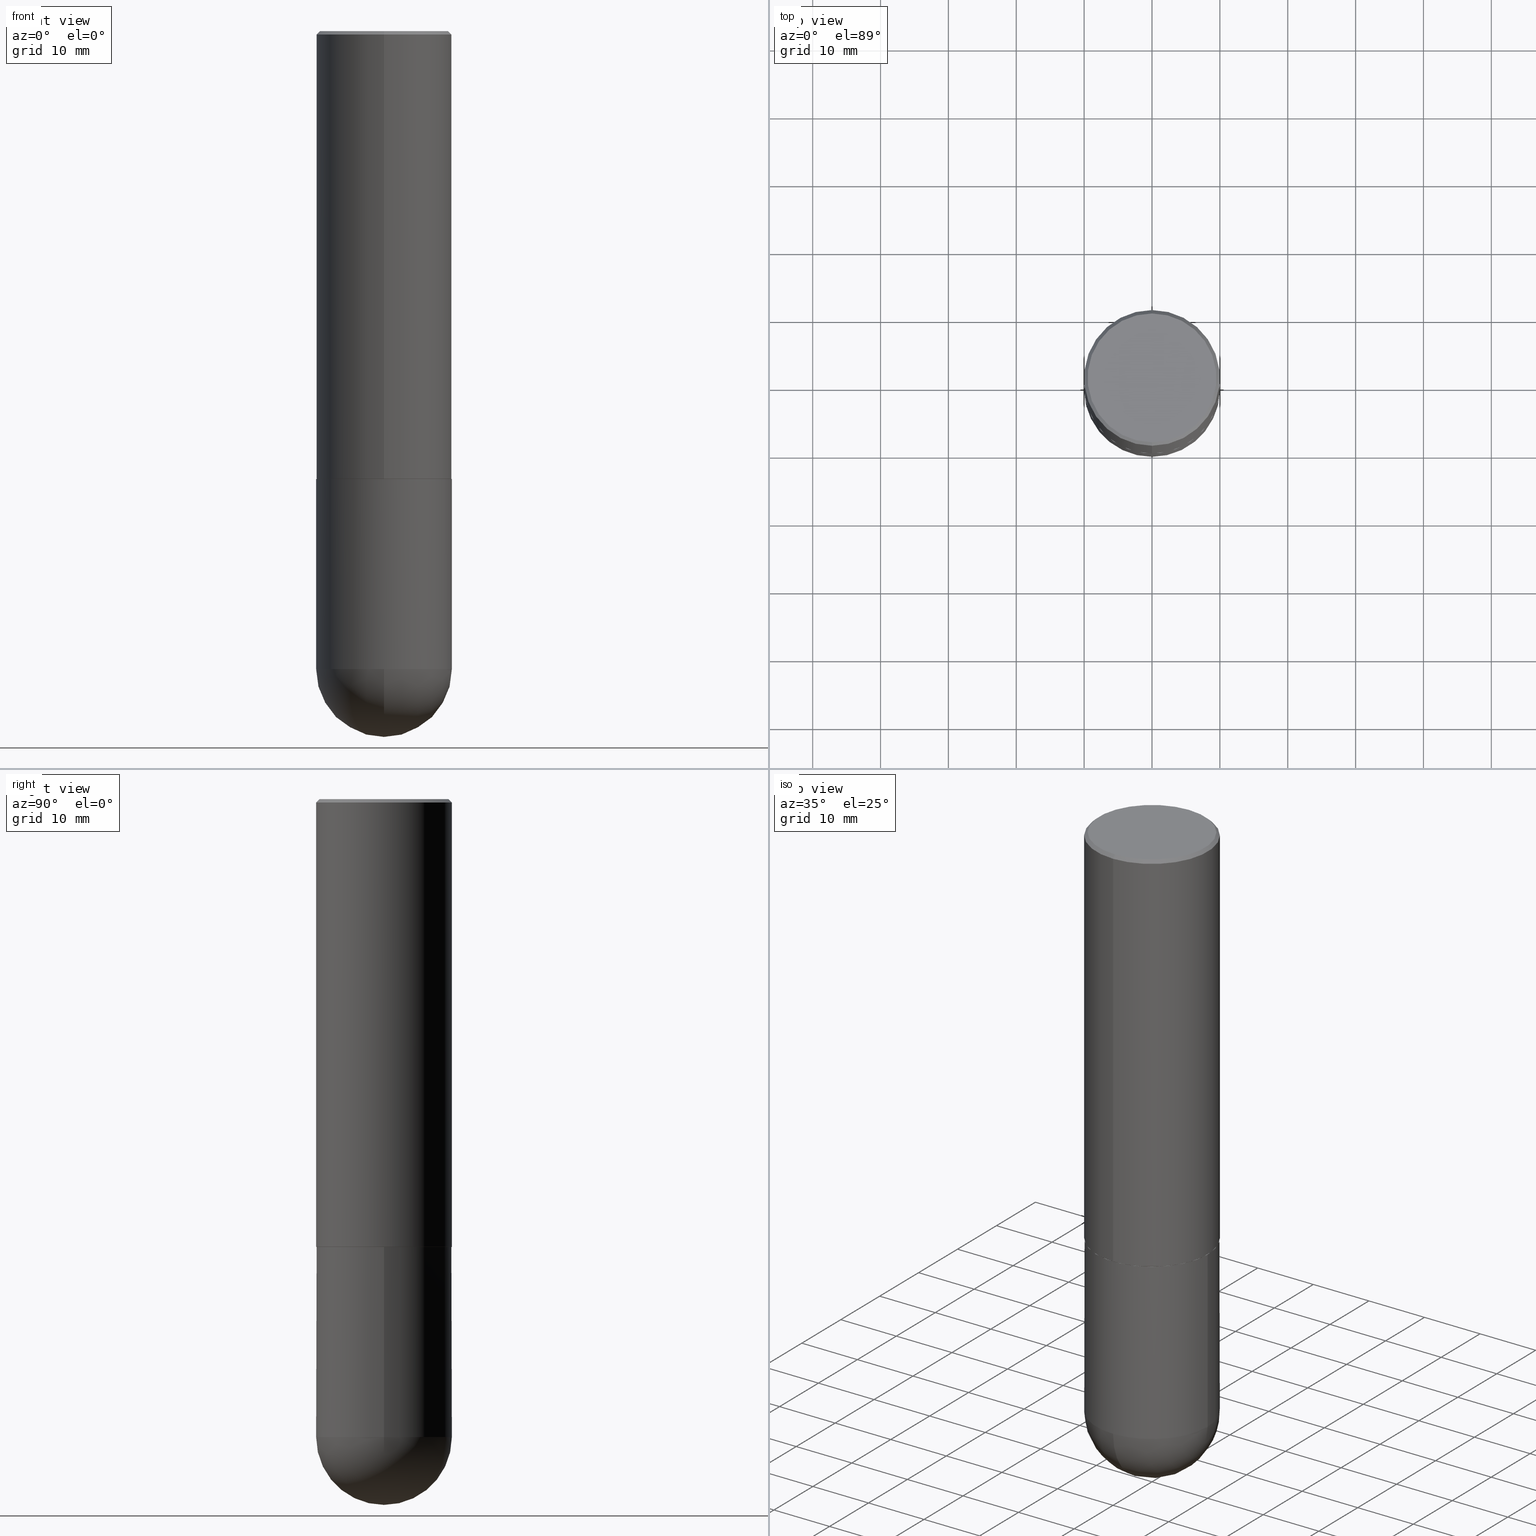
[diagram: canonical four-view strip — front | top / right | iso, engineering-drawing reading convention]
A machine part, canonical four-view strip (front | top / right | iso — engineering-drawing reading convention). The complete STEP part file that produces these views, byte-faithful:
ISO-10303-21;
HEADER;
FILE_DESCRIPTION (( 'STEP AP203' ),
    '1' );
FILE_NAME ('46521.STEP',
    '2024-04-10T11:50:51',
    ( '' ),
    ( '' ),
    'SwSTEP 2.0',
    'SolidWorks 2023',
    '' );
FILE_SCHEMA (( 'CONFIG_CONTROL_DESIGN' ));
ENDSEC;

DATA;
#1 = AXIS2_PLACEMENT_3D ( 'NONE', #306, #272, #25 ) ;
#2 = EDGE_CURVE ( 'NONE', #365, #158, #265, .T. ) ;
#3 = ORIENTED_EDGE ( 'NONE', *, *, #199, .F. ) ;
#4 = APPROVAL_PERSON_ORGANIZATION ( #310, #12, #276 ) ;
#5 = AXIS2_PLACEMENT_3D ( 'NONE', #331, #20, #266 ) ;
#6 = ORIENTED_EDGE ( 'NONE', *, *, #252, .T. ) ;
#7 = ADVANCED_FACE ( 'NONE', ( #233 ), #207, .T. ) ;
#8 = EDGE_LOOP ( 'NONE', ( #316, #46, #324, #204 ) ) ;
#9 = DIRECTION ( 'NONE',  ( -2.445468806185136597E-29, 3.491481338843145583E-15, 1.000000000000000000 ) ) ;
#10 = VERTEX_POINT ( 'NONE', #177 ) ;
#11 = CARTESIAN_POINT ( 'NONE',  ( 9.050190957929953666E-29, -1.292127413879071357E-14, -3.700800000000000090 ) ) ;
#12 = APPROVAL ( #249, 'UNSPECIFIED' ) ;
#13 = ORIENTED_EDGE ( 'NONE', *, *, #67, .F. ) ;
#14 = CARTESIAN_POINT ( 'NONE',  ( 6.354297864097246994E-29, -9.072276970993920294E-15, -2.598400000000000265 ) ) ;
#15 = ORIENTED_EDGE ( 'NONE', *, *, #288, .F. ) ;
#16 = DIRECTION ( 'NONE',  ( -6.982962677686265133E-15, -1.000000000000000000, 3.491137977679279424E-15 ) ) ;
#17 = VECTOR ( 'NONE', #162, 39.37007874015748143 ) ;
#18 = CALENDAR_DATE ( 2024, 10, 4 ) ;
#19 = ORIENTED_EDGE ( 'NONE', *, *, #327, .F. ) ;
#20 = DIRECTION ( 'NONE',  ( 2.445465618879790196E-29, -3.491485903245811789E-15, -1.000000000000000000 ) ) ;
#21 = VERTEX_POINT ( 'NONE', #109 ) ;
#22 = CC_DESIGN_DATE_AND_TIME_ASSIGNMENT ( #53, #341, ( #311 ) ) ;
#23 = DIRECTION ( 'NONE',  ( -2.445468806185136597E-29, 3.491481338843145583E-15, 1.000000000000000000 ) ) ;
#24 = COORDINATED_UNIVERSAL_TIME_OFFSET ( 5, 0, .BEHIND. ) ;
#25 = DIRECTION ( 'NONE',  ( 1.000000000000000000, -6.982962677686266711E-15, 0.000000000000000000 ) ) ;
#26 = DIRECTION ( 'NONE',  ( -2.445465618879790196E-29, 3.491485903245811789E-15, 1.000000000000000000 ) ) ;
#27 = AXIS2_PLACEMENT_3D ( 'NONE', #405, #210, #337 ) ;
#28 = COORDINATED_UNIVERSAL_TIME_OFFSET ( 5, 0, .BEHIND. ) ;
#29 = APPROVAL_DATE_TIME ( #60, #344 ) ;
#30 = AXIS2_PLACEMENT_3D ( 'NONE', #11, #392, #96 ) ;
#31 = AXIS2_PLACEMENT_3D ( 'NONE', #166, #332, #50 ) ;
#32 = EDGE_CURVE ( 'NONE', #193, #365, #47, .T. ) ;
#33 = ORIENTED_EDGE ( 'NONE', *, *, #351, .T. ) ;
#34 = CARTESIAN_POINT ( 'NONE',  ( -0.3937000000000000499, -8.199362874132856734E-15, -2.598400000000000265 ) ) ;
#35 = ORIENTED_EDGE ( 'NONE', *, *, #32, .F. ) ;
#36 = DIRECTION ( 'NONE',  ( 6.982962677686265922E-15, 1.000000000000000000, -4.163344669033671690E-15 ) ) ;
#37 = MECHANICAL_CONTEXT ( 'NONE', #104, 'mechanical' ) ;
#38 = ADVANCED_FACE ( 'NONE', ( #132 ), #82, .T. ) ;
#39 = AXIS2_PLACEMENT_3D ( 'NONE', #268, #359, #43 ) ;
#40 = ORIENTED_EDGE ( 'NONE', *, *, #394, .F. ) ;
#41 = DIRECTION ( 'NONE',  ( -6.982962677686265922E-15, -1.000000000000000000, 3.491485903245811789E-15 ) ) ;
#42 = CARTESIAN_POINT ( 'NONE',  ( 2.749192406205083217E-15, 0.3936999999999999389, -0.02000000000000146452 ) ) ;
#43 = DIRECTION ( 'NONE',  ( -6.982962677686265922E-15, -1.000000000000000000, 4.163344669033672479E-15 ) ) ;
#44 = DIRECTION ( 'NONE',  ( -2.445465618879790196E-29, 3.491485903245811789E-15, 1.000000000000000000 ) ) ;
#45 = ADVANCED_BREP_SHAPE_REPRESENTATION ( '46521', ( #121, #387, #383 ), #347 ) ;
#46 = ORIENTED_EDGE ( 'NONE', *, *, #410, .T. ) ;
#47 = CIRCLE ( 'NONE', #39, 0.3937000000000002720 ) ;
#48 = DIRECTION ( 'NONE',  ( 1.000000000000000000, -6.982962677686267499E-15, 0.000000000000000000 ) ) ;
#49 = AXIS2_PLACEMENT_3D ( 'NONE', #107, #180, #41 ) ;
#50 = DIRECTION ( 'NONE',  ( -6.982962677686265922E-15, -1.000000000000000000, 3.491485903245811789E-15 ) ) ;
#51 = ORIENTED_EDGE ( 'NONE', *, *, #252, .F. ) ;
#52 = DIRECTION ( 'NONE',  ( -2.445465618879790196E-29, 3.491485903245811789E-15, 1.000000000000000000 ) ) ;
#53 = DATE_AND_TIME ( #181, #182 ) ;
#54 = CARTESIAN_POINT ( 'NONE',  ( 2.749192406205173147E-15, 0.3936999999999871158, -3.700800000000001866 ) ) ;
#55 = LINE ( 'NONE', #328, #183 ) ;
#56 = DATE_AND_TIME ( #153, #100 ) ;
#57 = EDGE_CURVE ( 'NONE', #194, #388, #295, .T. ) ;
#58 = CLOSED_SHELL ( 'NONE', ( #346, #190, #314, #297, #7 ) ) ;
#59 = CIRCLE ( 'NONE', #119, 0.3926999999999999935 ) ;
#60 = DATE_AND_TIME ( #248, #407 ) ;
#61 = CALENDAR_DATE ( 2024, 10, 4 ) ;
#62 = CARTESIAN_POINT ( 'NONE',  ( 6.351852398478368558E-29, -9.068785485090674446E-15, -2.597400000000000375 ) ) ;
#63 = PERSON_AND_ORGANIZATION_ROLE ( 'classification_officer' ) ;
#64 = VECTOR ( 'NONE', #164, 39.37007874015748143 ) ;
#65 = DIRECTION ( 'NONE',  ( 1.000000000000000000, -6.982962677686266711E-15, 4.876176775795935793E-29 ) ) ;
#66 = ORIENTED_EDGE ( 'NONE', *, *, #124, .F. ) ;
#67 = EDGE_CURVE ( 'NONE', #300, #79, #390, .T. ) ;
#68 = VERTEX_POINT ( 'NONE', #150 ) ;
#69 = CC_DESIGN_PERSON_AND_ORGANIZATION_ASSIGNMENT ( #215, #63, ( #172 ) ) ;
#70 = DIRECTION ( 'NONE',  ( 0.000000000000000000, 0.000000000000000000, 1.000000000000000000 ) ) ;
#71 = CARTESIAN_POINT ( 'NONE',  ( 9.050190957929953666E-29, -1.292127413879071357E-14, -3.700800000000000090 ) ) ;
#72 = ORIENTED_EDGE ( 'NONE', *, *, #57, .F. ) ;
#73 = ORIENTED_EDGE ( 'NONE', *, *, #257, .F. ) ;
#74 = DIRECTION ( 'NONE',  ( -7.105427357600999492E-15, -1.000000000000000000, 0.000000000000000000 ) ) ;
#75 = ORIENTED_EDGE ( 'NONE', *, *, #336, .T. ) ;
#76 = EDGE_CURVE ( 'NONE', #79, #10, #254, .T. ) ;
#77 = PLANE ( 'NONE',  #315 ) ;
#78 = DIRECTION ( 'NONE',  ( 1.000000000000000000, -6.982962677686266711E-15, 0.000000000000000000 ) ) ;
#79 = VERTEX_POINT ( 'NONE', #54 ) ;
#80 = CARTESIAN_POINT ( 'NONE',  ( 2.797406750687515181E-15, 0.3937000000000001609, -1.374598000107876588E-15 ) ) ;
#81 = AXIS2_PLACEMENT_3D ( 'NONE', #171, #296, #141 ) ;
#82 = CYLINDRICAL_SURFACE ( 'NONE', #27, 0.3937000000000001609 ) ;
#83 = DIRECTION ( 'NONE',  ( -6.982962677686265133E-15, -1.000000000000000000, 4.173946514383900962E-15 ) ) ;
#84 = CC_DESIGN_DATE_AND_TIME_ASSIGNMENT ( #56, #89, ( #172 ) ) ;
#85 = DIRECTION ( 'NONE',  ( -2.445468806185136877E-29, 3.491481338843145188E-15, 1.000000000000000000 ) ) ;
#86 = AXIS2_PLACEMENT_3D ( 'NONE', #262, #402, #334 ) ;
#87 = AXIS2_PLACEMENT_3D ( 'NONE', #403, #274, #16 ) ;
#88 = DIRECTION ( 'NONE',  ( -1.000000000000000000, 6.982962677686265922E-15, -4.876176775795935793E-29 ) ) ;
#89 = DATE_TIME_ROLE ( 'classification_date' ) ;
#90 = DIRECTION ( 'NONE',  ( -6.982962677686265922E-15, -1.000000000000000000, 3.491485903245811789E-15 ) ) ;
#91 = ADVANCED_FACE ( 'NONE', ( #179 ), #211, .T. ) ;
#92 = AXIS2_PLACEMENT_3D ( 'NONE', #308, #23, #48 ) ;
#93 = ORIENTED_EDGE ( 'NONE', *, *, #275, .F. ) ;
#94 = ORGANIZATION ( 'UNSPECIFIED', 'UNSPECIFIED', '' ) ;
#95 = ORIENTED_EDGE ( 'NONE', *, *, #378, .F. ) ;
#96 = DIRECTION ( 'NONE',  ( 1.000000000000000000, -6.982962677686266711E-15, 0.000000000000000000 ) ) ;
#97 = APPROVAL_ROLE ( '' ) ;
#98 = DIRECTION ( 'NONE',  ( 6.982962677686265133E-15, 1.000000000000000000, 0.000000000000000000 ) ) ;
#99 = DIRECTION ( 'NONE',  ( 1.000000000000000000, 0.000000000000000000, 0.000000000000000000 ) ) ;
#100 = LOCAL_TIME ( 7, 50, 51.00000000000000000, #154 ) ;
#101 = ORIENTED_EDGE ( 'NONE', *, *, #410, .F. ) ;
#102 = AXIS2_PLACEMENT_3D ( 'NONE', #71, #235, #78 ) ;
#103 = DIRECTION ( 'NONE',  ( -2.445465618879790196E-29, 3.491485903245811789E-15, 1.000000000000000000 ) ) ;
#104 = APPLICATION_CONTEXT ( 'configuration controlled 3d designs of mechanical parts and assemblies' ) ;
#105 = CARTESIAN_POINT ( 'NONE',  ( 0.3937000000000001054, -2.749192406205084005E-15, 1.919750796630860452E-29 ) ) ;
#106 = EDGE_CURVE ( 'NONE', #326, #388, #159, .T. ) ;
#107 = CARTESIAN_POINT ( 'NONE',  ( 0.000000000000000000, 0.000000000000000000, 0.000000000000000000 ) ) ;
#108 = LINE ( 'NONE', #361, #261 ) ;
#109 = CARTESIAN_POINT ( 'NONE',  ( -2.632373081744936315E-15, -0.3737000000000000322, 1.291964450289935158E-15 ) ) ;
#110 = CARTESIAN_POINT ( 'NONE',  ( -2.700978061722651252E-15, -0.3937000000000001054, -0.01999999999999871672 ) ) ;
#111 = FACE_OUTER_BOUND ( 'NONE', #191, .T. ) ;
#112 = ORIENTED_EDGE ( 'NONE', *, *, #336, .F. ) ;
#113 = VECTOR ( 'NONE', #142, 39.37007874015748143 ) ;
#114 = CIRCLE ( 'NONE', #312, 0.3937000000000002720 ) ;
#115 = DIRECTION ( 'NONE',  ( 6.982962677686265922E-15, 1.000000000000000000, -3.491485903245811789E-15 ) ) ;
#116 = ADVANCED_FACE ( 'NONE', ( #237 ), #151, .T. ) ;
#117 = SPHERICAL_SURFACE ( 'NONE', #299, 0.3937000000000003830 ) ;
#118 = VECTOR ( 'NONE', #203, 39.37007874015748143 ) ;
#119 = AXIS2_PLACEMENT_3D ( 'NONE', #366, #144, #269 ) ;
#120 = UNCERTAINTY_MEASURE_WITH_UNIT (LENGTH_MEASURE( 1.000000000000000082E-05 ), #358, 'distance_accuracy_value', 'NONE');
#121 = MANIFOLD_SOLID_BREP ( 'Body-Move/Copy2[1]', #58 ) ;
#122 = ADVANCED_FACE ( 'NONE', ( #263 ), #243, .T. ) ;
#123 = PERSON_AND_ORGANIZATION_ROLE ( 'creator' ) ;
#124 = EDGE_CURVE ( 'NONE', #388, #326, #398, .T. ) ;
#125 = CIRCLE ( 'NONE', #87, 0.3937000000000000499 ) ;
#126 = ORIENTED_EDGE ( 'NONE', *, *, #124, .T. ) ;
#127 = ORIENTED_EDGE ( 'NONE', *, *, #137, .T. ) ;
#128 = CC_DESIGN_APPROVAL ( #12, ( #172 ) ) ;
#129 = AXIS2_PLACEMENT_3D ( 'NONE', #289, #9, #131 ) ;
#130 = APPROVAL_PERSON_ORGANIZATION ( #134, #240, #97 ) ;
#131 = DIRECTION ( 'NONE',  ( 1.000000000000000000, -6.982962677686266711E-15, 0.000000000000000000 ) ) ;
#132 = FACE_OUTER_BOUND ( 'NONE', #224, .T. ) ;
#133 = DIRECTION ( 'NONE',  ( -2.445468806185136597E-29, 3.491481338843145583E-15, 1.000000000000000000 ) ) ;
#134 = PERSON_AND_ORGANIZATION ( #286, #94 ) ;
#135 = VERTEX_POINT ( 'NONE', #304 ) ;
#136 = CARTESIAN_POINT ( 'NONE',  ( 2.609533152651357803E-15, 0.3737000000000000322, -1.311170197919472574E-15 ) ) ;
#137 = EDGE_CURVE ( 'NONE', #135, #158, #125, .T. ) ;
#138 = CARTESIAN_POINT ( 'NONE',  ( 2.790301323329976493E-15, 0.3926999999999909452, -2.598400000000002041 ) ) ;
#139 = DIRECTION ( 'NONE',  ( -2.445465618879790476E-29, 3.491485903245811789E-15, 1.000000000000000000 ) ) ;
#140 = AXIS2_PLACEMENT_3D ( 'NONE', #294, #397, #74 ) ;
#141 = DIRECTION ( 'NONE',  ( -6.982962677686265133E-15, -1.000000000000000000, 3.491137977679279424E-15 ) ) ;
#142 = DIRECTION ( 'NONE',  ( 5.024295867789263036E-15, 0.7071067811867189912, 0.7071067811863760433 ) ) ;
#143 = ORIENTED_EDGE ( 'NONE', *, *, #2, .T. ) ;
#144 = DIRECTION ( 'NONE',  ( -2.445465618879790196E-29, 3.491485903245811789E-15, 1.000000000000000000 ) ) ;
#145 = PRODUCT_DEFINITION_SHAPE ( 'NONE', 'NONE',  #311 ) ;
#146 = CARTESIAN_POINT ( 'NONE',  ( -2.749192406205084005E-15, -0.3937000000000001609, 1.374598000107876588E-15 ) ) ;
#147 = CC_DESIGN_PERSON_AND_ORGANIZATION_ASSIGNMENT ( #376, #123, ( #370 ) ) ;
#148 = DIRECTION ( 'NONE',  ( -2.445468806185136597E-29, 3.491481338843145583E-15, 1.000000000000000000 ) ) ;
#149 = APPROVAL_ROLE ( '' ) ;
#150 = CARTESIAN_POINT ( 'NONE',  ( 2.679362779428220707E-15, 0.3737000000000000322, -1.317572113795984915E-15 ) ) ;
#151 = CONICAL_SURFACE ( 'NONE', #309, 0.3926999999999999935, 0.7853981633976873100 ) ;
#152 = CARTESIAN_POINT ( 'NONE',  ( 6.354306145991459756E-29, -9.072265110850031044E-15, -2.598400000000000265 ) ) ;
#153 = CALENDAR_DATE ( 2024, 10, 4 ) ;
#154 = COORDINATED_UNIVERSAL_TIME_OFFSET ( 5, 0, .BEHIND. ) ;
#155 = CC_DESIGN_PERSON_AND_ORGANIZATION_ASSIGNMENT ( #212, #184, ( #370 ) ) ;
#156 = CIRCLE ( 'NONE', #31, 0.3737000000000000322 ) ;
#157 = CC_DESIGN_PERSON_AND_ORGANIZATION_ASSIGNMENT ( #214, #340, ( #311 ) ) ;
#158 = VERTEX_POINT ( 'NONE', #110 ) ;
#159 = CIRCLE ( 'NONE', #92, 0.3937000000000000499 ) ;
#160 = EDGE_CURVE ( 'NONE', #330, #303, #369, .T. ) ;
#161 = APPROVAL_PERSON_ORGANIZATION ( #271, #344, #149 ) ;
#162 = DIRECTION ( 'NONE',  ( -4.937700262165728178E-15, -0.7071067811867141062, 0.7071067811863809283 ) ) ;
#163 = AXIS2_PLACEMENT_3D ( 'NONE', #291, #393, #98 ) ;
#164 = DIRECTION ( 'NONE',  ( -2.445468806185136877E-29, 3.491481338843145188E-15, 1.000000000000000000 ) ) ;
#165 = CARTESIAN_POINT ( 'NONE',  ( 8.719071180016067419E-29, -1.339545650693076387E-14, -3.700800000000000090 ) ) ;
#166 = CARTESIAN_POINT ( 'NONE',  ( 3.131133034194372146E-46, -4.470439807321751239E-32, -1.280383175302489090E-17 ) ) ;
#167 = ORIENTED_EDGE ( 'NONE', *, *, #106, .F. ) ;
#168 = ADVANCED_FACE ( 'NONE', ( #363 ), #77, .F. ) ;
#169 = CARTESIAN_POINT ( 'NONE',  ( 0.3937000000000001054, -1.374596203102546026E-14, -3.700800000000000090 ) ) ;
#170 = ORIENTED_EDGE ( 'NONE', *, *, #199, .T. ) ;
#171 = CARTESIAN_POINT ( 'NONE',  ( 4.890931237759601867E-31, -6.982971806491655133E-17, -0.02000000000000009062 ) ) ;
#172 = SECURITY_CLASSIFICATION ( '', '', #373 ) ;
#173 = APPLICATION_PROTOCOL_DEFINITION ( 'international standard', 'config_control_design', 1994, #104 ) ;
#174 = EDGE_LOOP ( 'NONE', ( #250, #15, #259, #127 ) ) ;
#175 = DIRECTION ( 'NONE',  ( 1.000000000000000000, -6.982962677686267499E-15, 0.000000000000000000 ) ) ;
#176 = PLANE ( 'NONE',  #189 ) ;
#177 = CARTESIAN_POINT ( 'NONE',  ( -0.3937000000000001054, -8.199362874132859889E-15, -3.700800000000000090 ) ) ;
#178 = LINE ( 'NONE', #325, #17 ) ;
#179 = FACE_OUTER_BOUND ( 'NONE', #371, .T. ) ;
#180 = DIRECTION ( 'NONE',  ( -2.445465618879790196E-29, 3.491485903245811789E-15, 1.000000000000000000 ) ) ;
#181 = CALENDAR_DATE ( 2024, 10, 4 ) ;
#182 = LOCAL_TIME ( 7, 50, 51.00000000000000000, #24 ) ;
#183 = VECTOR ( 'NONE', #85, 39.37007874015748143 ) ;
#184 = PERSON_AND_ORGANIZATION_ROLE ( 'design_supplier' ) ;
#185 = CARTESIAN_POINT ( 'NONE',  ( 2.749192406205146325E-15, 0.3936999999999909461, -2.598400000000002041 ) ) ;
#186 = APPROVAL_DATE_TIME ( #380, #12 ) ;
#187 = PLANE ( 'NONE',  #313 ) ;
#188 = VECTOR ( 'NONE', #213, 39.37007874015748143 ) ;
#189 = AXIS2_PLACEMENT_3D ( 'NONE', #238, #206, #354 ) ;
#190 = ADVANCED_FACE ( 'NONE', ( #241 ), #117, .T. ) ;
#191 = EDGE_LOOP ( 'NONE', ( #219, #3 ) ) ;
#192 = AXIS2_PLACEMENT_3D ( 'NONE', #209, #52, #90 ) ;
#193 = VERTEX_POINT ( 'NONE', #260 ) ;
#194 = VERTEX_POINT ( 'NONE', #169 ) ;
#195 = EDGE_LOOP ( 'NONE', ( #51, #225, #236, #19 ) ) ;
#196 = CARTESIAN_POINT ( 'NONE',  ( 0.000000000000000000, 0.000000000000000000, 0.000000000000000000 ) ) ;
#197 = CC_DESIGN_APPROVAL ( #344, ( #370 ) ) ;
#198 = EDGE_LOOP ( 'NONE', ( #355, #348, #66, #72, #362 ) ) ;
#199 = EDGE_CURVE ( 'NONE', #303, #330, #59, .T. ) ;
#200 = LENGTH_MEASURE_WITH_UNIT ( LENGTH_MEASURE( 0.02539999999999999897 ), #302 );
#201 = EDGE_LOOP ( 'NONE', ( #73, #75, #255, #384, #167 ) ) ;
#202 = CARTESIAN_POINT ( 'NONE',  ( 6.354297864097246994E-29, -9.072276970993920294E-15, -2.598400000000000265 ) ) ;
#203 = DIRECTION ( 'NONE',  ( 4.937700262164536998E-15, 0.7071067811865435759, -0.7071067811865514585 ) ) ;
#204 = ORIENTED_EDGE ( 'NONE', *, *, #351, .F. ) ;
#205 = FACE_OUTER_BOUND ( 'NONE', #321, .T. ) ;
#206 = DIRECTION ( 'NONE',  ( -2.445465618879789916E-29, 3.491485903245811789E-15, 1.000000000000000000 ) ) ;
#207 = CYLINDRICAL_SURFACE ( 'NONE', #86, 0.3937000000000001054 ) ;
#208 = CIRCLE ( 'NONE', #140, 0.3937000000000003830 ) ;
#209 = CARTESIAN_POINT ( 'NONE',  ( 3.131133034194372146E-46, -4.470439807321751239E-32, -1.280383175302489090E-17 ) ) ;
#210 = DIRECTION ( 'NONE',  ( -2.445465618879790196E-29, 3.491485903245811789E-15, 1.000000000000000000 ) ) ;
#211 = CYLINDRICAL_SURFACE ( 'NONE', #49, 0.3937000000000001609 ) ;
#212 = PERSON_AND_ORGANIZATION ( #286, #94 ) ;
#213 = DIRECTION ( 'NONE',  ( -2.445465618879790476E-29, 3.491485903245811789E-15, 1.000000000000000000 ) ) ;
#214 = PERSON_AND_ORGANIZATION ( #286, #94 ) ;
#215 = PERSON_AND_ORGANIZATION ( #286, #94 ) ;
#216 = CARTESIAN_POINT ( 'NONE',  ( 9.698686197413653023E-29, -1.474594553779209640E-14, -4.094500000000000028 ) ) ;
#217 = EDGE_CURVE ( 'NONE', #193, #135, #360, .T. ) ;
#218 = AXIS2_PLACEMENT_3D ( 'NONE', #14, #44, #234 ) ;
#219 = ORIENTED_EDGE ( 'NONE', *, *, #160, .F. ) ;
#220 = FACE_OUTER_BOUND ( 'NONE', #195, .T. ) ;
#221 = EDGE_LOOP ( 'NONE', ( #391, #386 ) ) ;
#222 = ADVANCED_FACE ( 'NONE', ( #372 ), #273, .T. ) ;
#223 = CIRCLE ( 'NONE', #192, 0.3737000000000000322 ) ;
#224 = EDGE_LOOP ( 'NONE', ( #281, #399, #93, #287 ) ) ;
#225 = ORIENTED_EDGE ( 'NONE', *, *, #67, .T. ) ;
#226 = FACE_OUTER_BOUND ( 'NONE', #198, .T. ) ;
#227 = CC_DESIGN_PERSON_AND_ORGANIZATION_ASSIGNMENT ( #292, #298, ( #333 ) ) ;
#228 = DIRECTION ( 'NONE',  ( -4.851104656540953231E-15, -0.7071067811865484609, -0.7071067811865465735 ) ) ;
#229 = EDGE_LOOP ( 'NONE', ( #126, #280 ) ) ;
#230 = CLOSED_SHELL ( 'NONE', ( #116, #38, #284, #222, #91, #122, #389, #168 ) ) ;
#231 = CARTESIAN_POINT ( 'NONE',  ( -2.749192406205021291E-15, -0.3937000000000093758, -2.597399999999999043 ) ) ;
#232 = AXIS2_PLACEMENT_3D ( 'NONE', #165, #319, #36 ) ;
#233 = FACE_OUTER_BOUND ( 'NONE', #201, .T. ) ;
#234 = DIRECTION ( 'NONE',  ( -6.982962677686265133E-15, -1.000000000000000000, 4.173946514383900962E-15 ) ) ;
#235 = DIRECTION ( 'NONE',  ( -2.445468806185136597E-29, 3.491481338843145583E-15, 1.000000000000000000 ) ) ;
#236 = ORIENTED_EDGE ( 'NONE', *, *, #368, .F. ) ;
#237 = FACE_OUTER_BOUND ( 'NONE', #8, .T. ) ;
#238 = CARTESIAN_POINT ( 'NONE',  ( 6.354297864097246994E-29, -9.072276970993920294E-15, -2.598400000000000265 ) ) ;
#239 = ORIENTED_EDGE ( 'NONE', *, *, #76, .F. ) ;
#240 = APPROVAL ( #264, 'UNSPECIFIED' ) ;
#241 = FACE_OUTER_BOUND ( 'NONE', #396, .T. ) ;
#242 = ORIENTED_EDGE ( 'NONE', *, *, #275, .T. ) ;
#243 = CONICAL_SURFACE ( 'NONE', #385, 0.3926999999999999935, 0.7853981633976873100 ) ;
#244 = CARTESIAN_POINT ( 'NONE',  ( 8.719071180016067419E-29, -1.339545650693076387E-14, -3.700800000000000090 ) ) ;
#245 = DIRECTION ( 'NONE',  ( -1.000000000000000000, 6.982962677686265922E-15, -4.883557194083112340E-29 ) ) ;
#246 = DATE_AND_TIME ( #18, #356 ) ;
#247 = PRODUCT_RELATED_PRODUCT_CATEGORY ( 'detail', '', ( #333 ) ) ;
#248 = CALENDAR_DATE ( 2024, 10, 4 ) ;
#249 = APPROVAL_STATUS ( 'not_yet_approved' ) ;
#250 = ORIENTED_EDGE ( 'NONE', *, *, #381, .F. ) ;
#251 = ORIENTED_EDGE ( 'NONE', *, *, #217, .F. ) ;
#252 = EDGE_CURVE ( 'NONE', #300, #293, #208, .T. ) ;
#253 = DIRECTION ( 'NONE',  ( -6.982962677686265922E-15, -1.000000000000000000, 4.163344669033672479E-15 ) ) ;
#254 = CIRCLE ( 'NONE', #1, 0.3937000000000001054 ) ;
#255 = ORIENTED_EDGE ( 'NONE', *, *, #327, .T. ) ;
#256 = CARTESIAN_POINT ( 'NONE',  ( -2.742209443527332910E-15, -0.3927000000000090973, -2.598399999999998489 ) ) ;
#257 = EDGE_CURVE ( 'NONE', #10, #326, #55, .T. ) ;
#258 = ORIENTED_EDGE ( 'NONE', *, *, #381, .T. ) ;
#259 = ORIENTED_EDGE ( 'NONE', *, *, #394, .T. ) ;
#260 = CARTESIAN_POINT ( 'NONE',  ( 2.797406750687547524E-15, 0.3936999999999912236, -2.597400000000002152 ) ) ;
#261 = VECTOR ( 'NONE', #228, 39.37007874015748143 ) ;
#262 = CARTESIAN_POINT ( 'NONE',  ( 0.000000000000000000, 0.000000000000000000, 0.000000000000000000 ) ) ;
#263 = FACE_OUTER_BOUND ( 'NONE', #317, .T. ) ;
#264 = APPROVAL_STATUS ( 'not_yet_approved' ) ;
#265 = LINE ( 'NONE', #146, #282 ) ;
#266 = DIRECTION ( 'NONE',  ( 6.982962677686265133E-15, 1.000000000000000000, -3.491137977679279424E-15 ) ) ;
#267 = COORDINATED_UNIVERSAL_TIME_OFFSET ( 5, 0, .BEHIND. ) ;
#268 = CARTESIAN_POINT ( 'NONE',  ( 6.351852398478368558E-29, -9.068785485090674446E-15, -2.597400000000000375 ) ) ;
#269 = DIRECTION ( 'NONE',  ( -6.982962677686265133E-15, -1.000000000000000000, 4.173946514383900962E-15 ) ) ;
#270 = CC_DESIGN_APPROVAL ( #240, ( #311 ) ) ;
#271 = PERSON_AND_ORGANIZATION ( #286, #94 ) ;
#272 = DIRECTION ( 'NONE',  ( -2.445468806185136597E-29, 3.491481338843145583E-15, 1.000000000000000000 ) ) ;
#273 = CONICAL_SURFACE ( 'NONE', #357, 0.3937000000000000499, 0.7853981633974461696 ) ;
#274 = DIRECTION ( 'NONE',  ( -2.445465618879790196E-29, 3.491485903245811789E-15, 1.000000000000000000 ) ) ;
#275 = EDGE_CURVE ( 'NONE', #158, #135, #290, .T. ) ;
#276 = APPROVAL_ROLE ( '' ) ;
#277 = COORDINATED_UNIVERSAL_TIME_OFFSET ( 5, 0, .BEHIND. ) ;
#278 = CIRCLE ( 'NONE', #102, 0.3937000000000001054 ) ;
#279 = DIRECTION ( 'NONE',  ( -2.445465618879790196E-29, 3.491485903245811789E-15, 1.000000000000000000 ) ) ;
#280 = ORIENTED_EDGE ( 'NONE', *, *, #106, .T. ) ;
#281 = ORIENTED_EDGE ( 'NONE', *, *, #307, .T. ) ;
#282 = VECTOR ( 'NONE', #139, 39.37007874015748143 ) ;
#283 = CIRCLE ( 'NONE', #30, 0.3937000000000001054 ) ;
#284 = ADVANCED_FACE ( 'NONE', ( #205 ), #349, .T. ) ;
#285 = ORIENTED_EDGE ( 'NONE', *, *, #32, .T. ) ;
#286 = PERSON ( 'UNSPECIFIED', 'UNSPECIFIED', 'UNSPECIFIED', ('UNSPECIFIED'), ('UNSPECIFIED'), ('UNSPECIFIED') ) ;
#287 = ORIENTED_EDGE ( 'NONE', *, *, #2, .F. ) ;
#288 = EDGE_CURVE ( 'NONE', #68, #21, #223, .T. ) ;
#289 = CARTESIAN_POINT ( 'NONE',  ( 9.050190957929953666E-29, -1.292127413879071357E-14, -3.700800000000000090 ) ) ;
#290 = CIRCLE ( 'NONE', #81, 0.3937000000000000499 ) ;
#291 = CARTESIAN_POINT ( 'NONE',  ( 8.719071180016067419E-29, -1.339545650693076387E-14, -3.700800000000000090 ) ) ;
#292 = PERSON_AND_ORGANIZATION ( #286, #94 ) ;
#293 = VERTEX_POINT ( 'NONE', #375 ) ;
#294 = CARTESIAN_POINT ( 'NONE',  ( 8.719071180016067419E-29, -1.339545650693076387E-14, -3.700800000000000090 ) ) ;
#295 = LINE ( 'NONE', #105, #64 ) ;
#296 = DIRECTION ( 'NONE',  ( -2.445465618879790196E-29, 3.491485903245811789E-15, 1.000000000000000000 ) ) ;
#297 = ADVANCED_FACE ( 'NONE', ( #411 ), #187, .F. ) ;
#298 = PERSON_AND_ORGANIZATION_ROLE ( 'design_owner' ) ;
#299 = AXIS2_PLACEMENT_3D ( 'NONE', #244, #245, #406 ) ;
#300 = VERTEX_POINT ( 'NONE', #216 ) ;
#301 = DIRECTION ( 'NONE',  ( 2.445465618879790196E-29, -3.491485903245811789E-15, -1.000000000000000000 ) ) ;
#302 =( LENGTH_UNIT ( ) NAMED_UNIT ( * ) SI_UNIT ( $, .METRE. ) );
#303 = VERTEX_POINT ( 'NONE', #343 ) ;
#304 = CARTESIAN_POINT ( 'NONE',  ( 2.749192406205083217E-15, 0.3936999999999999389, -0.02000000000000146452 ) ) ;
#305 = APPROVAL_STATUS ( 'not_yet_approved' ) ;
#306 = CARTESIAN_POINT ( 'NONE',  ( 9.050190957929953666E-29, -1.292127413879071357E-14, -3.700800000000000090 ) ) ;
#307 = EDGE_CURVE ( 'NONE', #365, #193, #114, .T. ) ;
#308 = CARTESIAN_POINT ( 'NONE',  ( 6.354306145991459756E-29, -9.072265110850031044E-15, -2.598400000000000265 ) ) ;
#309 = AXIS2_PLACEMENT_3D ( 'NONE', #335, #26, #83 ) ;
#310 = PERSON_AND_ORGANIZATION ( #286, #94 ) ;
#311 = PRODUCT_DEFINITION ( 'UNKNOWN', '', #370, #382 ) ;
#312 = AXIS2_PLACEMENT_3D ( 'NONE', #62, #279, #253 ) ;
#313 = AXIS2_PLACEMENT_3D ( 'NONE', #185, #379, #88 ) ;
#314 = ADVANCED_FACE ( 'NONE', ( #220 ), #350, .T. ) ;
#315 = AXIS2_PLACEMENT_3D ( 'NONE', #136, #409, #115 ) ;
#316 = ORIENTED_EDGE ( 'NONE', *, *, #160, .T. ) ;
#317 = EDGE_LOOP ( 'NONE', ( #101, #170, #33, #35 ) ) ;
#318 = APPLICATION_CONTEXT ( 'configuration controlled 3d designs of mechanical parts and assemblies' ) ;
#319 = DIRECTION ( 'NONE',  ( -1.000000000000000000, 6.982962677686265922E-15, -4.883557194083112340E-29 ) ) ;
#320 = CARTESIAN_POINT ( 'NONE',  ( 0.3937000000000000499, -1.182145751705511584E-14, -2.598400000000000265 ) ) ;
#321 = EDGE_LOOP ( 'NONE', ( #95, #258, #242, #40 ) ) ;
#322 = AXIS2_PLACEMENT_3D ( 'NONE', #152, #148, #175 ) ;
#323 = LINE ( 'NONE', #42, #118 ) ;
#324 = ORIENTED_EDGE ( 'NONE', *, *, #307, .F. ) ;
#325 = CARTESIAN_POINT ( 'NONE',  ( -2.742209443527332910E-15, -0.3927000000000090973, -2.598399999999998489 ) ) ;
#326 = VERTEX_POINT ( 'NONE', #34 ) ;
#327 = EDGE_CURVE ( 'NONE', #293, #194, #377, .T. ) ;
#328 = CARTESIAN_POINT ( 'NONE',  ( -0.3937000000000001054, 2.797406750687515181E-15, -1.936584745033357016E-29 ) ) ;
#329 =( NAMED_UNIT ( * ) PLANE_ANGLE_UNIT ( ) SI_UNIT ( $, .RADIAN. ) );
#330 = VERTEX_POINT ( 'NONE', #256 ) ;
#331 = CARTESIAN_POINT ( 'NONE',  ( 4.890931237759601867E-31, -6.982971806491655133E-17, -0.02000000000000009062 ) ) ;
#332 = DIRECTION ( 'NONE',  ( -2.445465618879790196E-29, 3.491485903245811789E-15, 1.000000000000000000 ) ) ;
#333 = PRODUCT ( '46521', '46521', '', ( #37 ) ) ;
#334 = DIRECTION ( 'NONE',  ( 1.000000000000000000, -6.982962677686266711E-15, 4.876176775795935793E-29 ) ) ;
#335 = CARTESIAN_POINT ( 'NONE',  ( 6.354297864097246994E-29, -9.072276970993920294E-15, -2.598400000000000265 ) ) ;
#336 = EDGE_CURVE ( 'NONE', #10, #293, #283, .T. ) ;
#337 = DIRECTION ( 'NONE',  ( -6.982962677686265922E-15, -1.000000000000000000, 3.491485903245811789E-15 ) ) ;
#338 = CARTESIAN_POINT ( 'NONE',  ( 4.890931237759601867E-31, -6.982971806491655133E-17, -0.02000000000000009062 ) ) ;
#339 = DIMENSIONAL_EXPONENTS ( 1.000000000000000000, 0.000000000000000000, 0.000000000000000000, 0.000000000000000000, 0.000000000000000000, 0.000000000000000000, 0.000000000000000000 ) ;
#340 = PERSON_AND_ORGANIZATION_ROLE ( 'creator' ) ;
#341 = DATE_TIME_ROLE ( 'creation_date' ) ;
#342 = AXIS2_PLACEMENT_3D ( 'NONE', #196, #133, #65 ) ;
#343 = CARTESIAN_POINT ( 'NONE',  ( 2.793854037008778575E-15, 0.3926999999999909452, -2.598400000000002041 ) ) ;
#344 = APPROVAL ( #305, 'UNSPECIFIED' ) ;
#345 = APPROVAL_DATE_TIME ( #246, #240 ) ;
#346 = ADVANCED_FACE ( 'NONE', ( #226 ), #353, .T. ) ;
#347 =( GEOMETRIC_REPRESENTATION_CONTEXT ( 3 ) GLOBAL_UNCERTAINTY_ASSIGNED_CONTEXT ( ( #120 ) ) GLOBAL_UNIT_ASSIGNED_CONTEXT ( ( #358, #329, #364 ) ) REPRESENTATION_CONTEXT ( 'NONE', 'WORKASPACE' ) );
#348 = ORIENTED_EDGE ( 'NONE', *, *, #257, .T. ) ;
#349 = CONICAL_SURFACE ( 'NONE', #5, 0.3937000000000000499, 0.7853981633974461696 ) ;
#350 = SPHERICAL_SURFACE ( 'NONE', #232, 0.3937000000000003830 ) ;
#351 = EDGE_CURVE ( 'NONE', #330, #365, #178, .T. ) ;
#352 = ORIENTED_EDGE ( 'NONE', *, *, #137, .F. ) ;
#353 = CYLINDRICAL_SURFACE ( 'NONE', #342, 0.3937000000000001054 ) ;
#354 = DIRECTION ( 'NONE',  ( -6.982962677686265922E-15, -1.000000000000000000, 3.491485903245811789E-15 ) ) ;
#355 = ORIENTED_EDGE ( 'NONE', *, *, #76, .T. ) ;
#356 = LOCAL_TIME ( 7, 50, 51.00000000000000000, #267 ) ;
#357 = AXIS2_PLACEMENT_3D ( 'NONE', #338, #301, #374 ) ;
#358 =( CONVERSION_BASED_UNIT ( 'INCH', #200 ) LENGTH_UNIT ( ) NAMED_UNIT ( #339 ) );
#359 = DIRECTION ( 'NONE',  ( -2.445465618879790196E-29, 3.491485903245811789E-15, 1.000000000000000000 ) ) ;
#360 = LINE ( 'NONE', #80, #188 ) ;
#361 = CARTESIAN_POINT ( 'NONE',  ( -2.700978061722651252E-15, -0.3937000000000001054, -0.01999999999999871672 ) ) ;
#362 = ORIENTED_EDGE ( 'NONE', *, *, #368, .T. ) ;
#363 = FACE_OUTER_BOUND ( 'NONE', #221, .T. ) ;
#364 =( NAMED_UNIT ( * ) SI_UNIT ( $, .STERADIAN. ) SOLID_ANGLE_UNIT ( ) );
#365 = VERTEX_POINT ( 'NONE', #231 ) ;
#366 = CARTESIAN_POINT ( 'NONE',  ( 6.354297864097246994E-29, -9.072276970993920294E-15, -2.598400000000000265 ) ) ;
#367 = LOCAL_TIME ( 7, 50, 51.00000000000000000, #28 ) ;
#368 = EDGE_CURVE ( 'NONE', #194, #79, #278, .T. ) ;
#369 = CIRCLE ( 'NONE', #218, 0.3926999999999999935 ) ;
#370 = PRODUCT_DEFINITION_FORMATION_WITH_SPECIFIED_SOURCE ( 'ANY', '', #333, .NOT_KNOWN. ) ;
#371 = EDGE_LOOP ( 'NONE', ( #251, #285, #143, #352 ) ) ;
#372 = FACE_OUTER_BOUND ( 'NONE', #174, .T. ) ;
#373 = SECURITY_CLASSIFICATION_LEVEL ( 'unclassified' ) ;
#374 = DIRECTION ( 'NONE',  ( 6.982962677686265133E-15, 1.000000000000000000, -3.491137977679279424E-15 ) ) ;
#375 = CARTESIAN_POINT ( 'NONE',  ( -2.797406750687426828E-15, -0.3937000000000133171, -3.700799999999998313 ) ) ;
#376 = PERSON_AND_ORGANIZATION ( #286, #94 ) ;
#377 = CIRCLE ( 'NONE', #129, 0.3937000000000001054 ) ;
#378 = EDGE_CURVE ( 'NONE', #21, #68, #156, .T. ) ;
#379 = DIRECTION ( 'NONE',  ( 2.438088387897960049E-29, -3.491481338843145188E-15, -1.000000000000000000 ) ) ;
#380 = DATE_AND_TIME ( #61, #367 ) ;
#381 = EDGE_CURVE ( 'NONE', #21, #158, #108, .T. ) ;
#382 = DESIGN_CONTEXT ( 'detailed design', #318, 'design' ) ;
#383 = AXIS2_PLACEMENT_3D ( 'NONE', #404, #70, #99 ) ;
#384 = ORIENTED_EDGE ( 'NONE', *, *, #57, .T. ) ;
#385 = AXIS2_PLACEMENT_3D ( 'NONE', #202, #103, #400 ) ;
#386 = ORIENTED_EDGE ( 'NONE', *, *, #378, .T. ) ;
#387 = MANIFOLD_SOLID_BREP ( 'Body-Move/Copy2[2]', #230 ) ;
#388 = VERTEX_POINT ( 'NONE', #320 ) ;
#389 = ADVANCED_FACE ( 'NONE', ( #111 ), #176, .F. ) ;
#390 = CIRCLE ( 'NONE', #163, 0.3937000000000003830 ) ;
#391 = ORIENTED_EDGE ( 'NONE', *, *, #288, .T. ) ;
#392 = DIRECTION ( 'NONE',  ( -2.445468806185136597E-29, 3.491481338843145583E-15, 1.000000000000000000 ) ) ;
#393 = DIRECTION ( 'NONE',  ( 1.000000000000000000, -6.982962677686265922E-15, 4.883557194083112340E-29 ) ) ;
#394 = EDGE_CURVE ( 'NONE', #68, #135, #323, .T. ) ;
#395 = APPLICATION_PROTOCOL_DEFINITION ( 'international standard', 'config_control_design', 1994, #318 ) ;
#396 = EDGE_LOOP ( 'NONE', ( #13, #6, #112, #239 ) ) ;
#397 = DIRECTION ( 'NONE',  ( -1.000000000000000000, 7.105427357601001070E-15, -4.926315508542082329E-29 ) ) ;
#398 = CIRCLE ( 'NONE', #322, 0.3937000000000000499 ) ;
#399 = ORIENTED_EDGE ( 'NONE', *, *, #217, .T. ) ;
#400 = DIRECTION ( 'NONE',  ( -6.982962677686265133E-15, -1.000000000000000000, 4.173946514383900962E-15 ) ) ;
#401 = LINE ( 'NONE', #138, #113 ) ;
#402 = DIRECTION ( 'NONE',  ( -2.445468806185136597E-29, 3.491481338843145583E-15, 1.000000000000000000 ) ) ;
#403 = CARTESIAN_POINT ( 'NONE',  ( 4.890931237759601867E-31, -6.982971806491655133E-17, -0.02000000000000009062 ) ) ;
#404 = CARTESIAN_POINT ( 'NONE',  ( 0.000000000000000000, 0.000000000000000000, 0.000000000000000000 ) ) ;
#405 = CARTESIAN_POINT ( 'NONE',  ( 0.000000000000000000, 0.000000000000000000, 0.000000000000000000 ) ) ;
#406 = DIRECTION ( 'NONE',  ( 6.982962677686265922E-15, 1.000000000000000000, -4.163344669033671690E-15 ) ) ;
#407 = LOCAL_TIME ( 7, 50, 51.00000000000000000, #277 ) ;
#408 = SHAPE_DEFINITION_REPRESENTATION ( #145, #45 ) ;
#409 = DIRECTION ( 'NONE',  ( 2.445465618879789916E-29, -3.491485903245811789E-15, -1.000000000000000000 ) ) ;
#410 = EDGE_CURVE ( 'NONE', #303, #193, #401, .T. ) ;
#411 = FACE_OUTER_BOUND ( 'NONE', #229, .T. ) ;
#412 = CC_DESIGN_SECURITY_CLASSIFICATION ( #172, ( #370 ) ) ;
ENDSEC;
END-ISO-10303-21;
